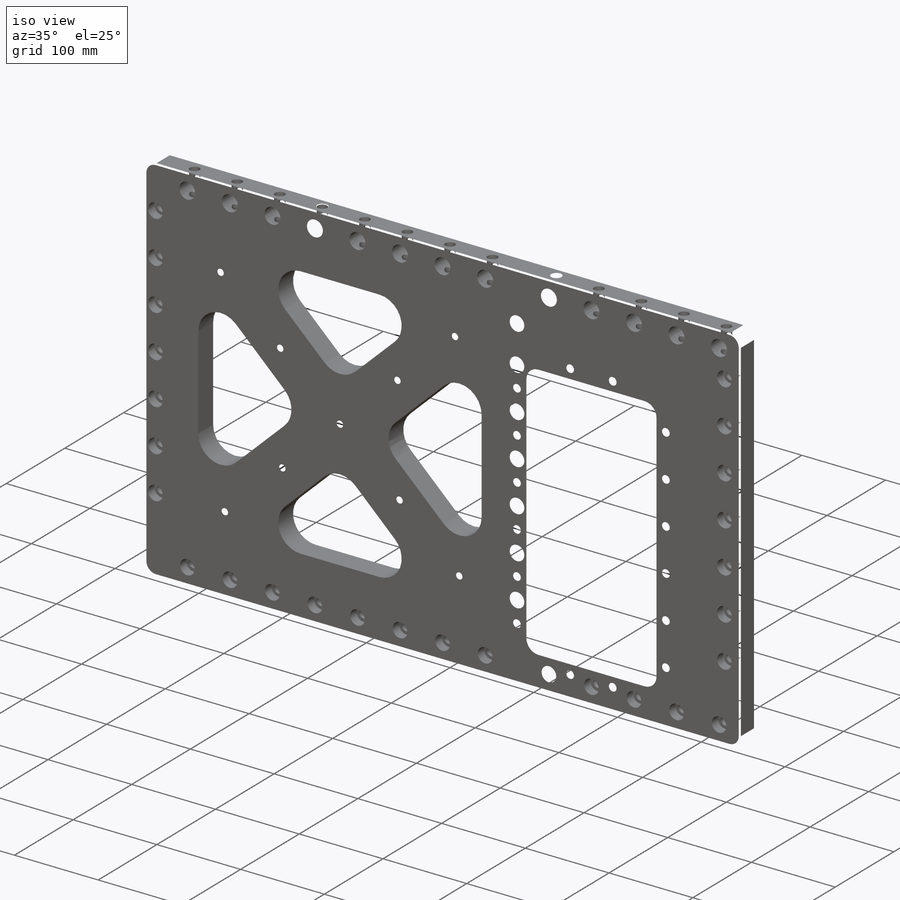
[diagram: iso view]
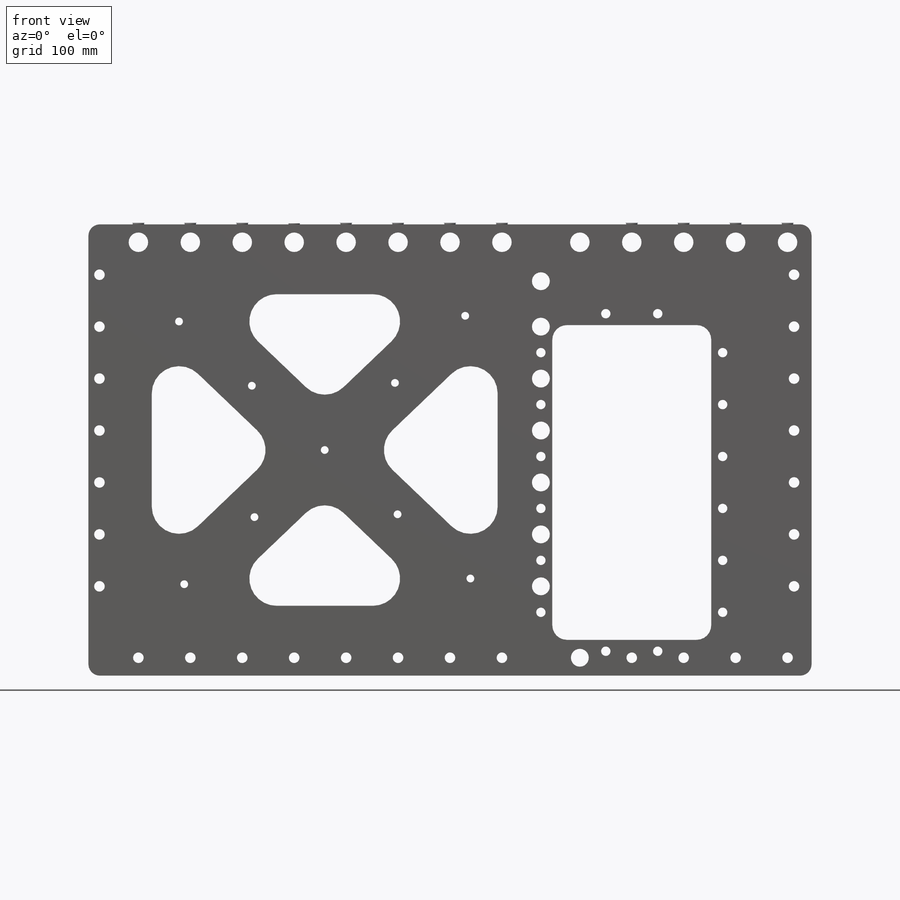
[diagram: front view]
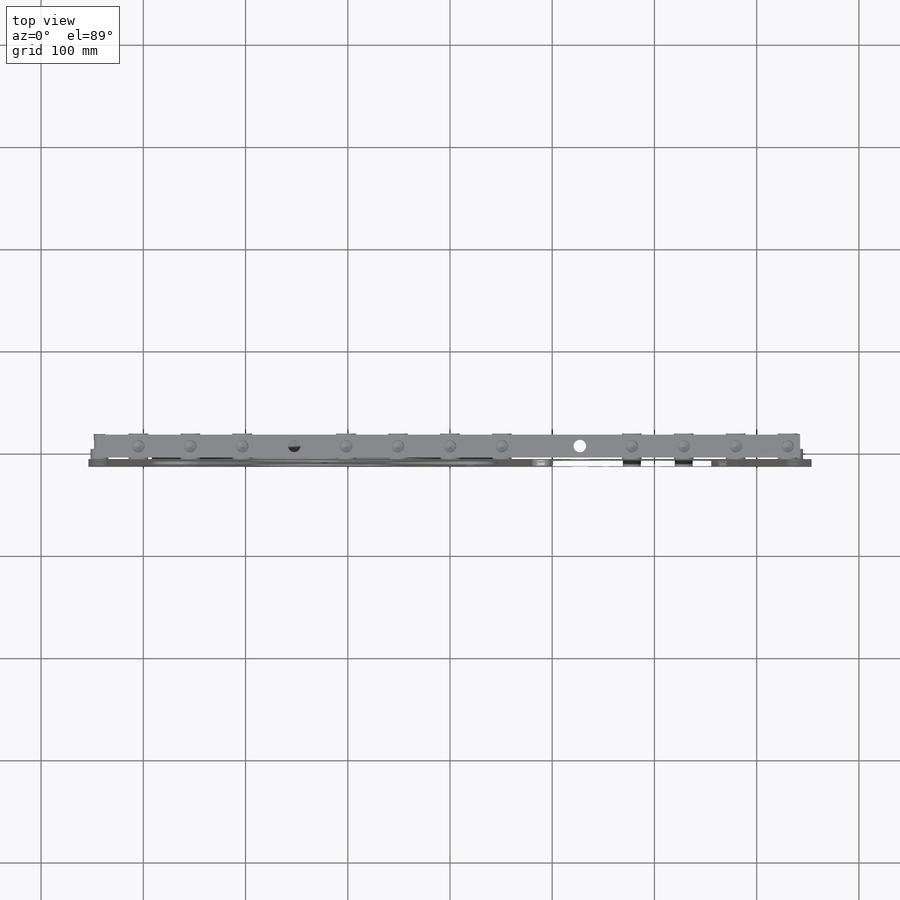
[diagram: top view]
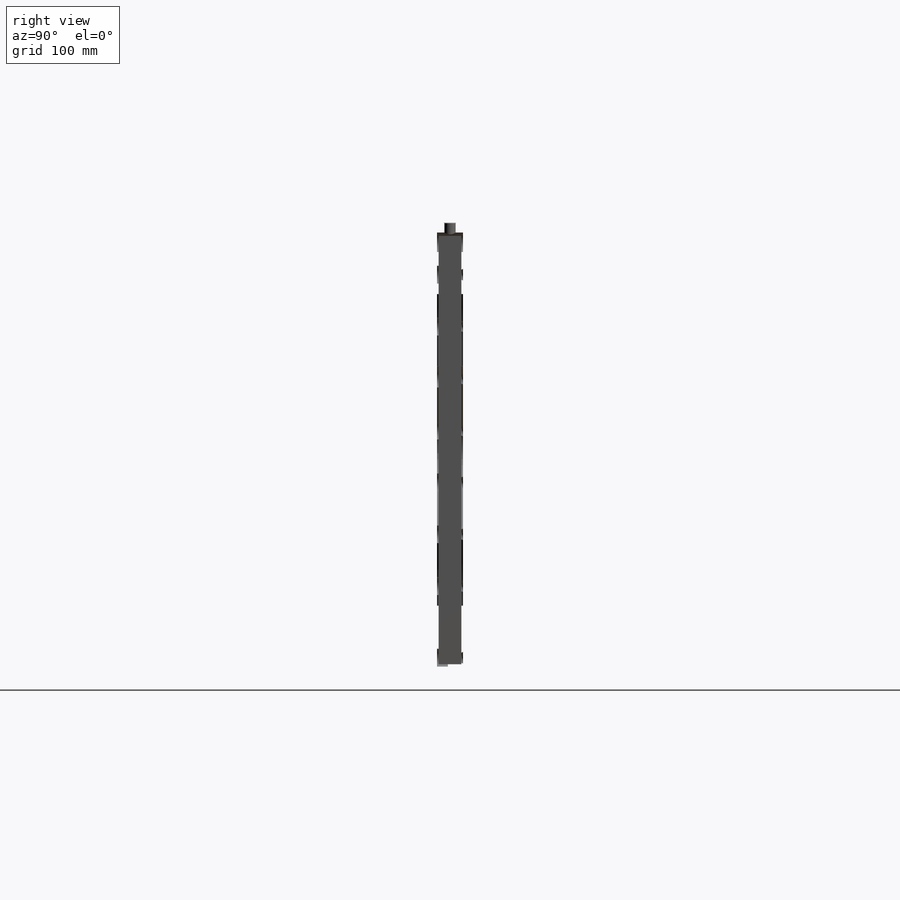
[diagram: right view]
SOLIDWORKS PART (.sldprt)
format: sldprt  version: not decoded by parser v0  size: 1,730,560 bytes
history: native  units: mm
features: sketch x27, hole x11, pattern_linear x6, cut_extrude x4, fillet x2, chamfer x2, material x1, extrude x1 (+14 scaffold rows collapsed)
feature tree (68):
  scaffold x14  (default folders/planes/origin — collapsed)
  material  "6061-T6 Al"
  sketch  "Sketch1"  dims[D1=710.438mm D2=444.5mm]
  extrude  "Extrude1"  Depth=25.4mm
  hole  "CBORE for 3/8 Socket Head Cap Screw1"  Diameter=10.31748mm Depth=25.4mm
  sketch  "Sketch3"  dims[c1.D1=12.7mm c1.D2=25.4mm c1.D3=~439.940903mm c1.D4=19.05mm c2.D2=406.4mm c2.D1=679.45mm c2.D3=342.9mm]
  sketch  "Sketch2"  dims[hole-wizard template sketch: 43 standard entries collapsed; hole parameters kept: c12.C'Bore Dia.=17.4752mm c12.C'Bore Depth=10.668mm c12.Far C'Sink Dia.=11.684mm c12.D6=~2.963249mm c12.Far C'Sink Angle=82.0deg]
  pattern_linear  "LPattern1"  Count1=4 Count2=4 Spacing1=50.8mm Spacing2=50.8mm
  sketch  "Sketch9"  dims[c1.D1=50.8mm c1.D2=50.8mm c1.D3=50.8mm c2.D1=50.8mm c2.D2=69.85mm c2.D3=50.8mm c3.D1=50.8mm c3.D3=63.5mm c3.D4=~439.940903mm c3.D5=~232.670452mm c4.D1=63.5mm]
  cut_extrude  "Cut-Extrude2"  [1 undecoded]
  fillet  "Fillet2"  Radius=26.67mm
  hole  "CBORE for 3/8 Socket Head Cap Screw2"  Diameter=10.31748mm Depth=25.4mm
  sketch  "Sketch5"  dims[c1.D1=25.4mm c1.D2=203.2mm c2.D1=425.45mm c2.D2=152.4mm]
  sketch  "Sketch4"  dims[hole-wizard template sketch: 43 standard entries collapsed; hole parameters kept: c12.C'Bore Dia.=17.4752mm c12.C'Bore Depth=10.668mm c12.Far C'Sink Dia.=11.684mm c12.D6=~2.963249mm c12.Far C'Sink Angle=82.0deg]
  hole  "7/16 (0.4375) Diameter Hole1"  Diameter=11.1125mm Depth=34.925mm
  sketch  "Sketch15"  dims[D1=203.2mm]
  sketch  "Sketch14"  dims[hole-wizard template sketch: 46 standard entries collapsed; hole parameters above]
  hole  "3/4 (0.75) Diameter Hole1"  Diameter=19.05mm Depth=25.4mm
  sketch  "Sketch13"  dims[D1=19.05mm]
  sketch  "Sketch12"  dims[hole-wizard template sketch: 61 standard entries collapsed; hole parameters above]
  pattern_linear  "LPattern4"  Count1=4 Count2=5 Spacing1=50.8mm Spacing2=50.8mm
  hole  "CBORE for 3/8 Socket Head Cap Screw3"  Diameter=10.31748mm Depth=25.4mm
  sketch  "Sketch17"  dims[c1.D1=38.1mm c1.D2=~439.940903mm c2.D1=38.1mm c2.D3=50.8mm c2.D4=50.8mm c2.D2=431.8mm c3.D1=241.3mm c3.D2=247.65mm]
  sketch  "Sketch16"  dims[hole-wizard template sketch: 43 standard entries collapsed; hole parameters kept: c12.C'Bore Dia.=17.4752mm c12.C'Bore Depth=10.668mm c12.Far C'Sink Dia.=11.684mm c12.D6=~2.963249mm c12.Far C'Sink Angle=82.0deg]
  pattern_linear  "LPattern5"  Count1=3 Count2=4 Spacing1=50.8mm Spacing2=50.8mm
  hole  "CBORE for 3/8 Socket Head Cap Screw4"  Diameter=10.31748mm Depth=25.4mm
  sketch  "Sketch26"  dims[c1.D1=38.1mm c1.D2=~439.940903mm c2.D1=38.1mm c2.D3=50.8mm c2.D4=50.8mm c2.D2=431.8mm c3.D1=44.45mm]
  sketch  "Sketch27"  dims[hole-wizard template sketch: 43 standard entries collapsed; hole parameters kept: c12.C'Bore Dia.=17.4752mm c12.C'Bore Depth=10.668mm c12.Far C'Sink Dia.=11.684mm c12.D6=~2.963249mm c12.Far C'Sink Angle=82.0deg]
  hole  "1/4-20 Tapped Hole1"  Diameter=5.1054mm Depth=25.4mm
  sketch  "Sketch25"  dims[c1.D1=25.4mm c1.D2=76.2mm c1.D3=19.05mm c1.D4=50.8mm c1.D5=88.9mm c2.D1=177.8mm c2.D3=152.4mm]
  sketch  "Sketch24"  dims[hole-wizard template sketch: 41 standard entries collapsed; hole parameters kept: c12.Thru Tap Drill Dia.=5.1054mm c12.Thru Tap Drill Depth=25.4mm c12.Thread Major Dia.=6.35mm c12.Thread Depth=12.7mm c12.Near C'Sink Dia.=7.62mm c12.D6=~4.399409mm c12.Near C'Sink Angle=120.0deg]
  hole  "CBORE for 3/8 Socket Head Cap Screw5"  Diameter=10.31748mm Depth=25.4mm
  sketch  "Sketch29"  dims[c1.D1=25.4mm c1.D2=203.2mm c2.D1=38.1mm]
  sketch  "Sketch30"  dims[hole-wizard template sketch: 43 standard entries collapsed; hole parameters kept: c12.C'Bore Dia.=17.4752mm c12.C'Bore Depth=10.668mm c12.Far C'Sink Dia.=11.684mm c12.D6=~2.963249mm c12.Far C'Sink Angle=82.0deg]
  hole  "7/16 (0.4375) Diameter Hole2"  Diameter=11.1125mm Depth=34.925mm
  sketch  "Sketch31"  dims[D1=203.2mm]
  sketch  "Sketch32"  dims[hole-wizard template sketch: 46 standard entries collapsed; hole parameters above]
  hole  "3/4 (0.75) Diameter Hole2"  Diameter=19.05mm Depth=25.4mm
  sketch  "Sketch33"  dims[D1=19.05mm]
  sketch  "Sketch34"  dims[hole-wizard template sketch: 61 standard entries collapsed; hole parameters above]
  pattern_linear  "LPattern6"  Count1=5 Count2=1 Spacing1=50.8mm Spacing2=50.8mm
  fillet  "Fillet3"  Radius=12.7mm
  chamfer  "Chamfer1"  Distance=1.524mm Angle=45deg
  sketch  "Sketch35"  dims[c1.D1=12.7mm c1.D3=~10.31748mm c1.D2=330.2mm c2.D3=95.25mm c2.D4=38.1mm c2.D5=254.0mm c3.D3=12.7mm]
  cut_extrude  "Cut-Extrude5"  [1 undecoded]
  hole  "Tapped Hole for 1/4-20 Helicoil1"  Diameter=6.7564mm Depth=25.4mm
  sketch  "Sketch37"  dims[D1=330.2mm D2=177.8mm]
  sketch  "Sketch36"  dims[hole-wizard template sketch: 44 standard entries collapsed; hole parameters kept: c12.Thread Depth=15.7226mm c12.Near C'Sink Dia.=9.144mm c12.D6=~4.399409mm c12.Near C'Sink Angle=120.0deg c12.Far C'Sink Dia.=7.62mm c12.D8=~2.963249mm c12.Far C'Sink Angle=82.0deg]
  chamfer  "Chamfer2"  Distance=1.524mm Angle=45deg
  sketch  "Sketch38"  dims[D1=6.35mm D2=0.508mm]
  cut_extrude  "Extrude2"  Depth=12.7mm
  pattern_linear  "LPattern7"  Count1=6 Count2=1 Spacing1=50.8mm Spacing2=2.54mm
  sketch  "Sketch39"  dims[D1=6.35mm D2=0.508mm]
  cut_extrude  "Extrude3"  Depth=12.7mm
  pattern_linear  "LPattern8"  Count1=2 Count2=1 Spacing1=50.8mm Spacing2=2.54mm
decode coverage: 51 of 53 modeling features carry decoded parameters
note: ~ marks probable driven/reference dimensions
note: 2 parameter values undecoded
summary: Diameter pulled from absorbed wizard sketch
note: suppression state not decoded; provenance and decode notes live in map.json
